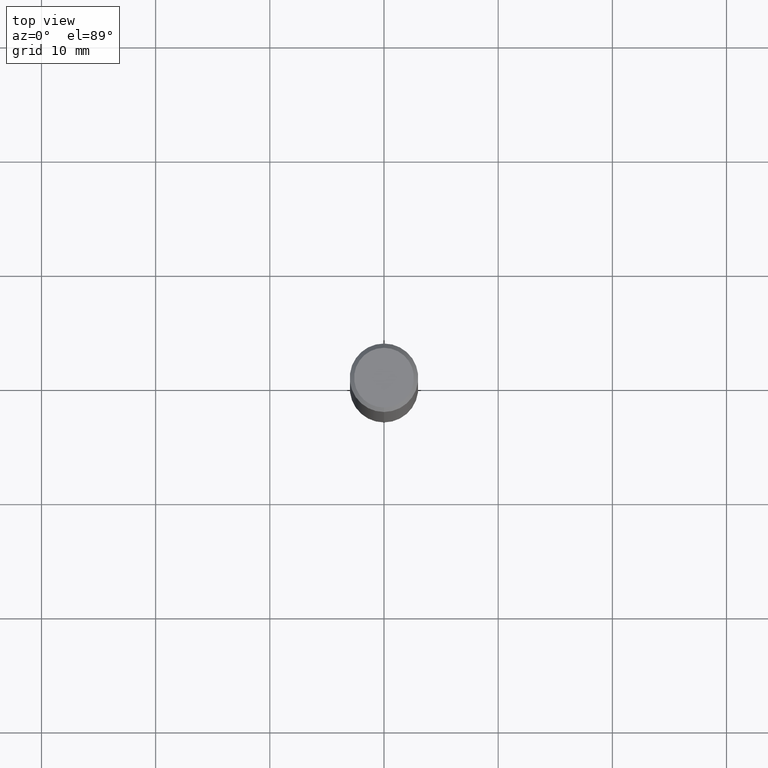
[diagram: clean part render]
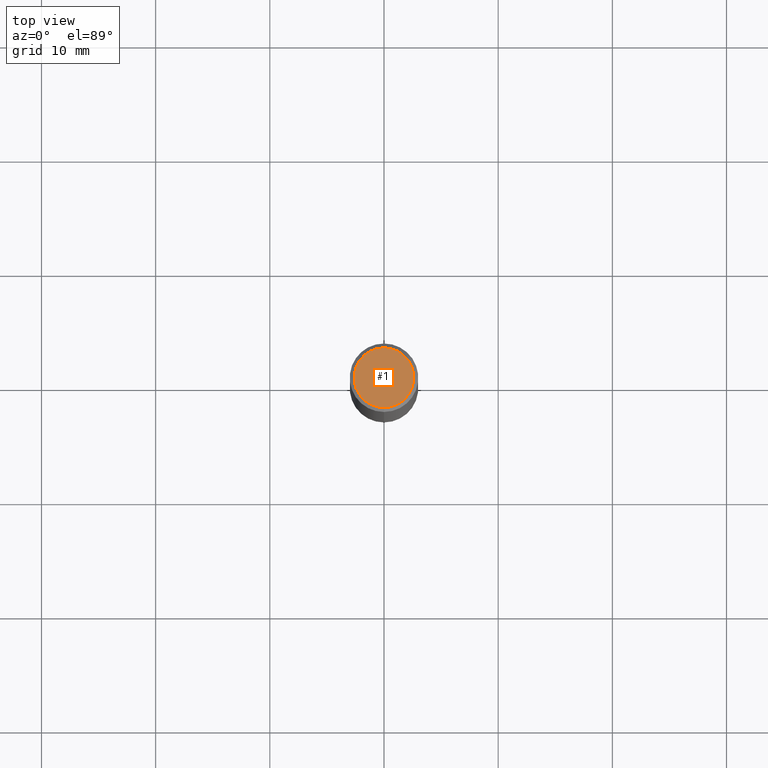
[diagram: same view with one face highlighted and labeled with its STEP entity id]
A machine part, top view. The second image highlights one B-rep face of the part: STEP entity #1.
In plain terms, the highlighted planar face has unit normal (0, -0, -1).
Its self-contained STEP definition (entity closure, byte-faithful):
#1 = ADVANCED_FACE ( 'NONE', ( #170 ), #447, .F. ) ;
#39 = AXIS2_PLACEMENT_3D ( 'NONE', #417, #230, #420 ) ;
#73 = VERTEX_POINT ( 'NONE', #457 ) ;
#74 = EDGE_CURVE ( 'NONE', #367, #73, #404, .T. ) ;
#92 = ORIENTED_EDGE ( 'NONE', *, *, #74, .T. ) ;
#107 = CARTESIAN_POINT ( 'NONE',  ( -1.114119938109327852E-48, 1.591070127638127819E-34, 4.556429220677854878E-20 ) ) ;
#148 = DIRECTION ( 'NONE',  ( -2.445160199248264608E-29, 3.491923281541562351E-15, 1.000000000000000000 ) ) ;
#170 = FACE_OUTER_BOUND ( 'NONE', #315, .T. ) ;
#183 = EDGE_CURVE ( 'NONE', #73, #367, #241, .T. ) ;
#230 = DIRECTION ( 'NONE',  ( 2.445160199248264328E-29, -3.491923281541562351E-15, -1.000000000000000000 ) ) ;
#241 = CIRCLE ( 'NONE', #394, 0.1031000000000000111 ) ;
#247 = ORIENTED_EDGE ( 'NONE', *, *, #183, .T. ) ;
#315 = EDGE_LOOP ( 'NONE', ( #92, #247 ) ) ;
#339 = DIRECTION ( 'NONE',  ( -2.445160199248264608E-29, 3.491923281541562351E-15, 1.000000000000000000 ) ) ;
#367 = VERTEX_POINT ( 'NONE', #469 ) ;
#381 = DIRECTION ( 'NONE',  ( -6.982962677686265922E-15, -1.000000000000000000, 3.491923281541561957E-15 ) ) ;
#394 = AXIS2_PLACEMENT_3D ( 'NONE', #458, #148, #418 ) ;
#404 = CIRCLE ( 'NONE', #473, 0.1031000000000000111 ) ;
#417 = CARTESIAN_POINT ( 'NONE',  ( 7.199434520694541042E-16, 0.1031000000000000111, -3.599945081808317145E-16 ) ) ;
#418 = DIRECTION ( 'NONE',  ( -6.982962677686265922E-15, -1.000000000000000000, 3.491923281541561957E-15 ) ) ;
#420 = DIRECTION ( 'NONE',  ( 6.982962677686265922E-15, 1.000000000000000000, -3.491923281541562351E-15 ) ) ;
#447 = PLANE ( 'NONE',  #39 ) ;
#457 = CARTESIAN_POINT ( 'NONE',  ( -7.587710785535310407E-16, -0.1031000000000000111, 3.600628546191418560E-16 ) ) ;
#458 = CARTESIAN_POINT ( 'NONE',  ( -1.114119938109327852E-48, 1.591070127638127819E-34, 4.556429220677854878E-20 ) ) ;
#469 = CARTESIAN_POINT ( 'NONE',  ( 7.723156721521011834E-16, 0.1031000000000000111, -3.599717260347282354E-16 ) ) ;
#473 = AXIS2_PLACEMENT_3D ( 'NONE', #107, #339, #381 ) ;